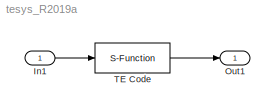
MODEL tesys_R2019a
KIND model
BLOCK [Inport] In1
  IconDisplay = Port number
  SID = 1
BLOCK [Outport] Out1
  IconDisplay = Port number
  SID = 3
BLOCK [S-Function] TE Code
  EnableBusSupport = off
  FunctionName = temexd_mod
  Parameters = [], [], 0
  Ports = [1, 1]
  SFcnIsStateOwnerBlock = off
  SFunctionDeploymentMode = off
  SID = 2
LINE In1:1 -> TE Code:1
LINE TE Code:1 -> Out1:1
